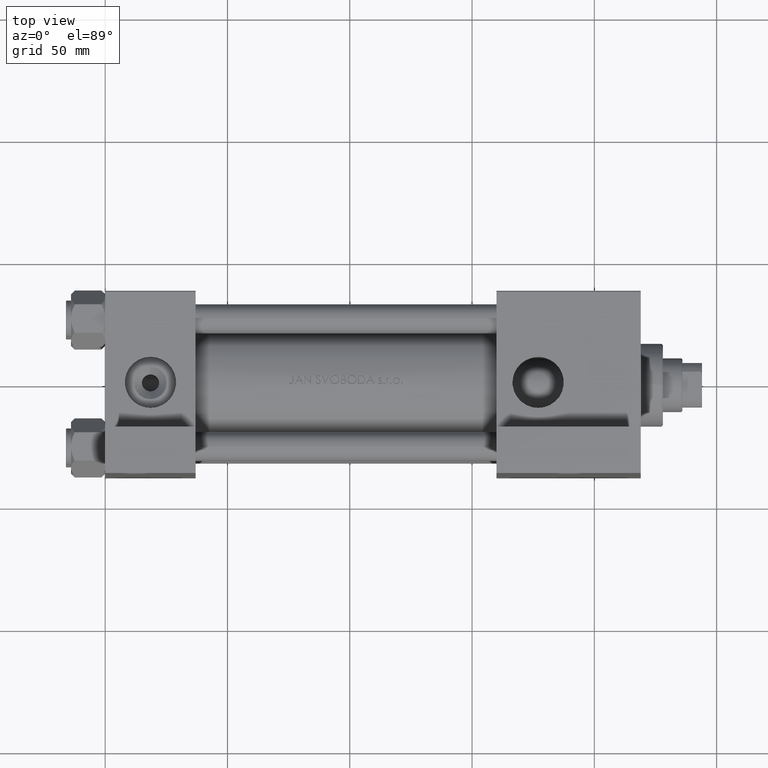
[diagram: clean part render]
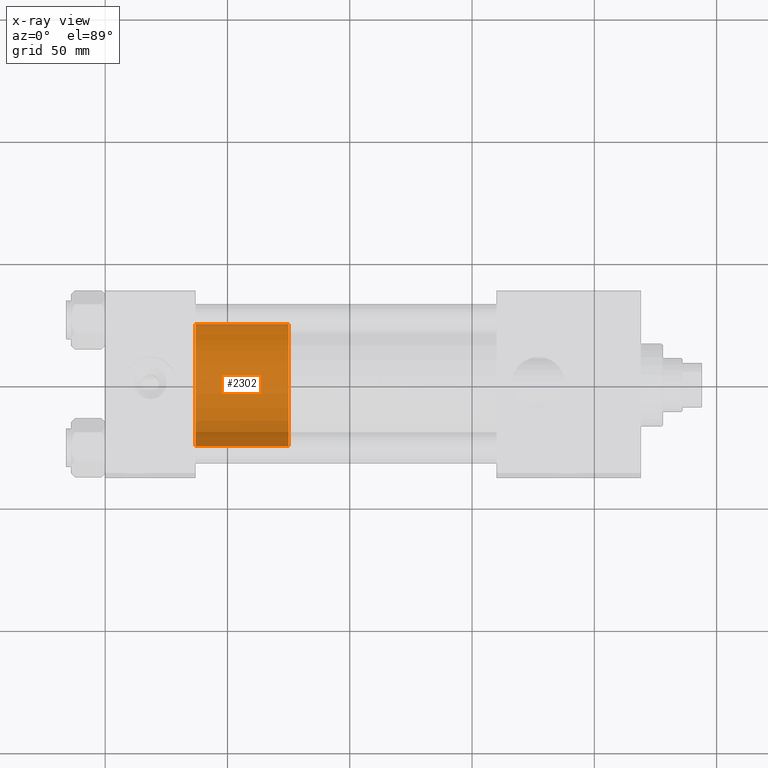
[diagram: x-ray — body ghosted, one internal face saturated and labeled with its STEP entity id]
A machine part, top view, then the same camera in x-ray: the body is ghosted and one INTERNAL B-rep face — a face not visible from any outside direction — is saturated and labeled: STEP entity #2302.
In plain terms, the highlighted cylindrical surface (partial cylindrical patch) has radius 25 mm, axis along (-1, 0, 0).
Its self-contained STEP definition (entity closure, byte-faithful):
#775 = DIRECTION ( 'NONE',  ( -0.000000000000000000, -0.000000000000000000, -1.000000000000000000 ) ) ;
#2302 = ADVANCED_FACE ( 'NONE', ( #38191 ), #8014, .T. ) ;
#2616 = DIRECTION ( 'NONE',  ( 0.000000000000000000, 0.000000000000000000, 1.000000000000000000 ) ) ;
#2891 = EDGE_CURVE ( 'NONE', #15315, #5750, #3457, .T. ) ;
#3420 = AXIS2_PLACEMENT_3D ( 'NONE', #15478, #775, #4030 ) ;
#3457 = CIRCLE ( 'NONE', #34491, 25.00000000000000000 ) ;
#4030 = DIRECTION ( 'NONE',  ( -1.000000000000000000, 0.000000000000000000, 0.000000000000000000 ) ) ;
#4611 = ORIENTED_EDGE ( 'NONE', *, *, #2891, .F. ) ;
#5420 = CARTESIAN_POINT ( 'NONE',  ( 25.00000000000000000, 3.061616997868383043E-15, 0.000000000000000000 ) ) ;
#5563 = VECTOR ( 'NONE', #7849, 1000.000000000000000 ) ;
#5750 = VERTEX_POINT ( 'NONE', #37288 ) ;
#7849 = DIRECTION ( 'NONE',  ( -0.000000000000000000, -0.000000000000000000, -1.000000000000000000 ) ) ;
#8014 = CYLINDRICAL_SURFACE ( 'NONE', #3420, 25.00000000000000000 ) ;
#14299 = DIRECTION ( 'NONE',  ( 1.000000000000000000, 0.000000000000000000, 0.000000000000000000 ) ) ;
#14864 = VERTEX_POINT ( 'NONE', #31512 ) ;
#15315 = VERTEX_POINT ( 'NONE', #33208 ) ;
#15478 = CARTESIAN_POINT ( 'NONE',  ( 0.000000000000000000, 0.000000000000000000, 38.00000000000000000 ) ) ;
#16075 = ORIENTED_EDGE ( 'NONE', *, *, #34508, .F. ) ;
#19006 = CARTESIAN_POINT ( 'NONE',  ( -25.00000000000000000, 0.000000000000000000, 38.00000000000000000 ) ) ;
#19498 = LINE ( 'NONE', #19006, #34576 ) ;
#20638 = EDGE_CURVE ( 'NONE', #15315, #30659, #34525, .T. ) ;
#20824 = DIRECTION ( 'NONE',  ( 1.000000000000000000, 0.000000000000000000, 0.000000000000000000 ) ) ;
#24530 = CIRCLE ( 'NONE', #37277, 25.00000000000000000 ) ;
#25521 = ORIENTED_EDGE ( 'NONE', *, *, #44252, .T. ) ;
#25541 = CARTESIAN_POINT ( 'NONE',  ( 0.000000000000000000, 0.000000000000000000, 0.000000000000000000 ) ) ;
#30659 = VERTEX_POINT ( 'NONE', #5420 ) ;
#30872 = EDGE_LOOP ( 'NONE', ( #4611, #38281, #25521, #16075 ) ) ;
#31512 = CARTESIAN_POINT ( 'NONE',  ( -25.00000000000000000, 0.000000000000000000, 0.000000000000000000 ) ) ;
#33208 = CARTESIAN_POINT ( 'NONE',  ( 25.00000000000000000, 3.061616997868383043E-15, 38.00000000000000000 ) ) ;
#34491 = AXIS2_PLACEMENT_3D ( 'NONE', #46504, #46752, #20824 ) ;
#34508 = EDGE_CURVE ( 'NONE', #5750, #14864, #19498, .T. ) ;
#34525 = LINE ( 'NONE', #41282, #5563 ) ;
#34576 = VECTOR ( 'NONE', #37725, 1000.000000000000000 ) ;
#37277 = AXIS2_PLACEMENT_3D ( 'NONE', #25541, #2616, #14299 ) ;
#37288 = CARTESIAN_POINT ( 'NONE',  ( -25.00000000000000000, 0.000000000000000000, 38.00000000000000000 ) ) ;
#37725 = DIRECTION ( 'NONE',  ( -0.000000000000000000, -0.000000000000000000, -1.000000000000000000 ) ) ;
#38191 = FACE_OUTER_BOUND ( 'NONE', #30872, .T. ) ;
#38281 = ORIENTED_EDGE ( 'NONE', *, *, #20638, .T. ) ;
#41282 = CARTESIAN_POINT ( 'NONE',  ( 25.00000000000000000, 3.061616997868383043E-15, 38.00000000000000000 ) ) ;
#44252 = EDGE_CURVE ( 'NONE', #30659, #14864, #24530, .T. ) ;
#46504 = CARTESIAN_POINT ( 'NONE',  ( 0.000000000000000000, 0.000000000000000000, 38.00000000000000000 ) ) ;
#46752 = DIRECTION ( 'NONE',  ( 0.000000000000000000, 0.000000000000000000, 1.000000000000000000 ) ) ;